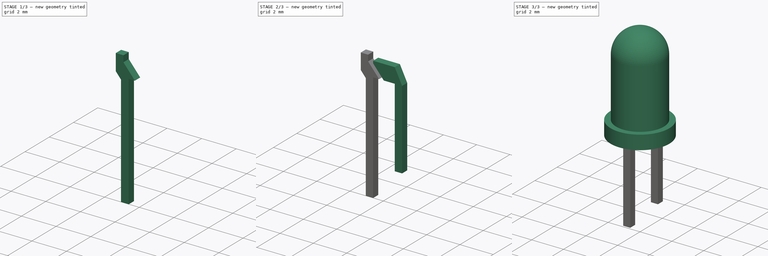
[diagram: build sequence overview — one tinted view per stage of 3, left to right]
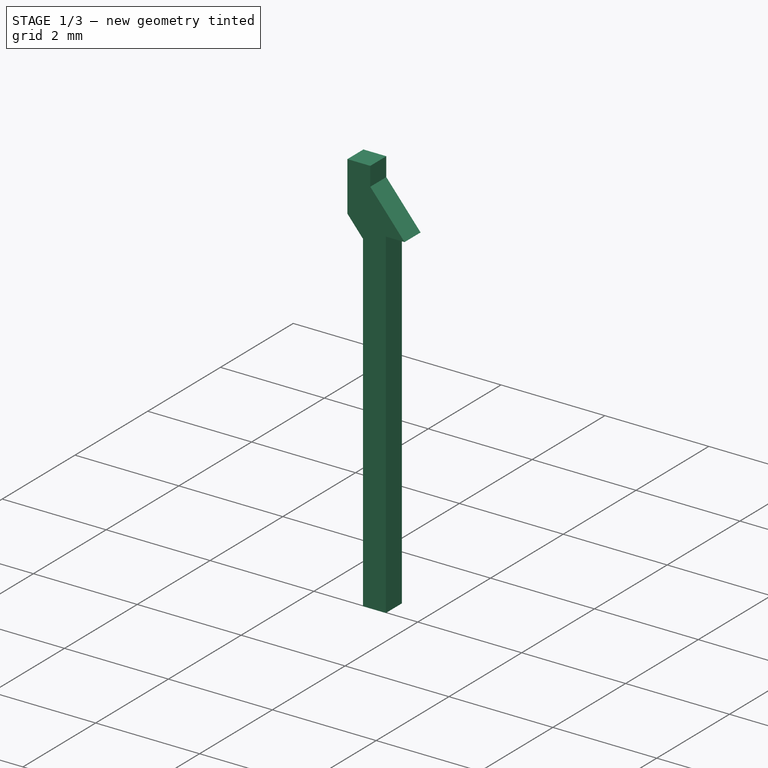
[diagram: stage 1 of 3 — iso view after this stage's code; geometry added in this stage tinted green]
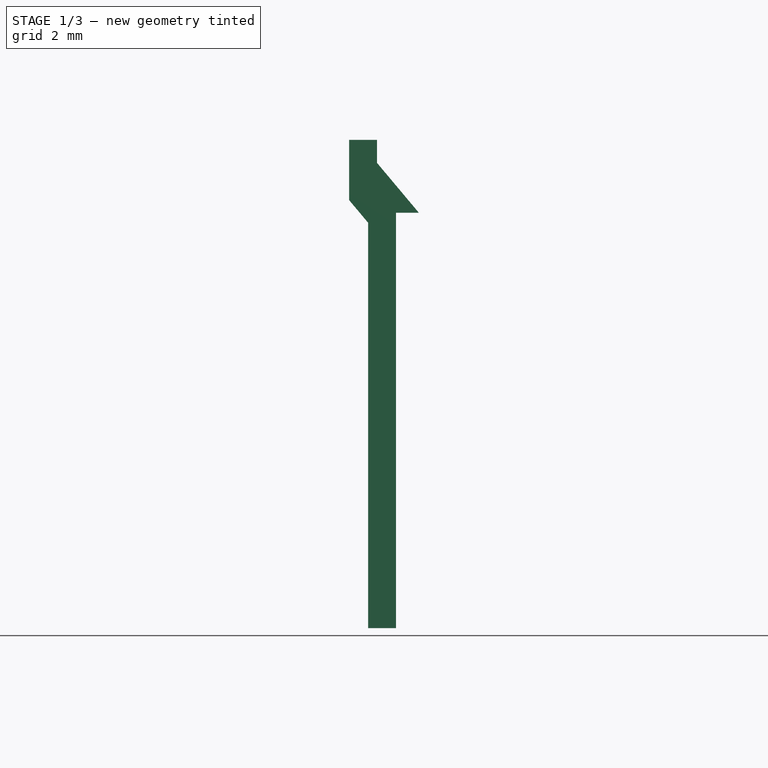
[diagram: stage 1 of 3 — front view after this stage's code; geometry added in this stage tinted green]
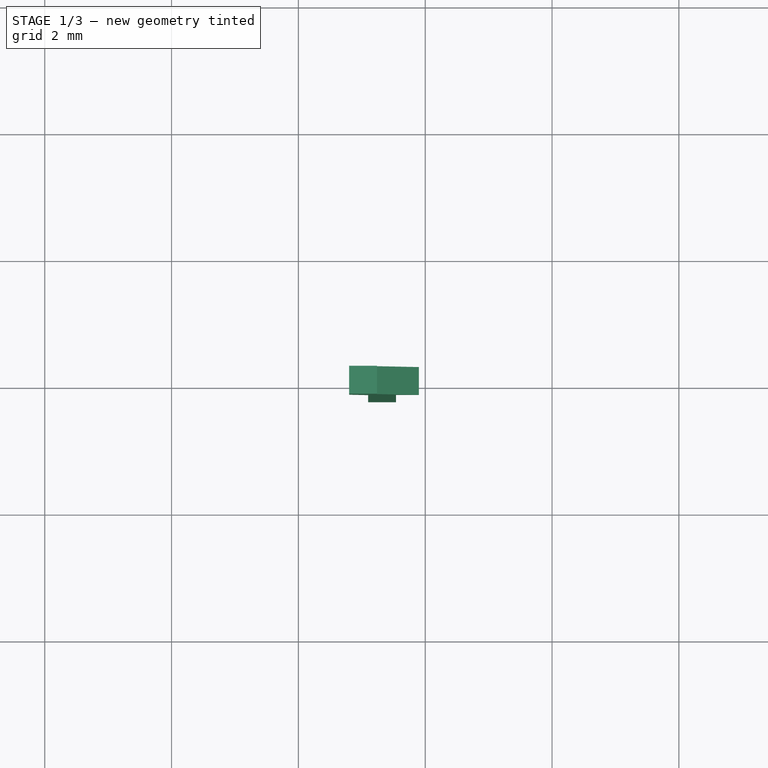
[diagram: stage 1 of 3 — top view after this stage's code; geometry added in this stage tinted green]
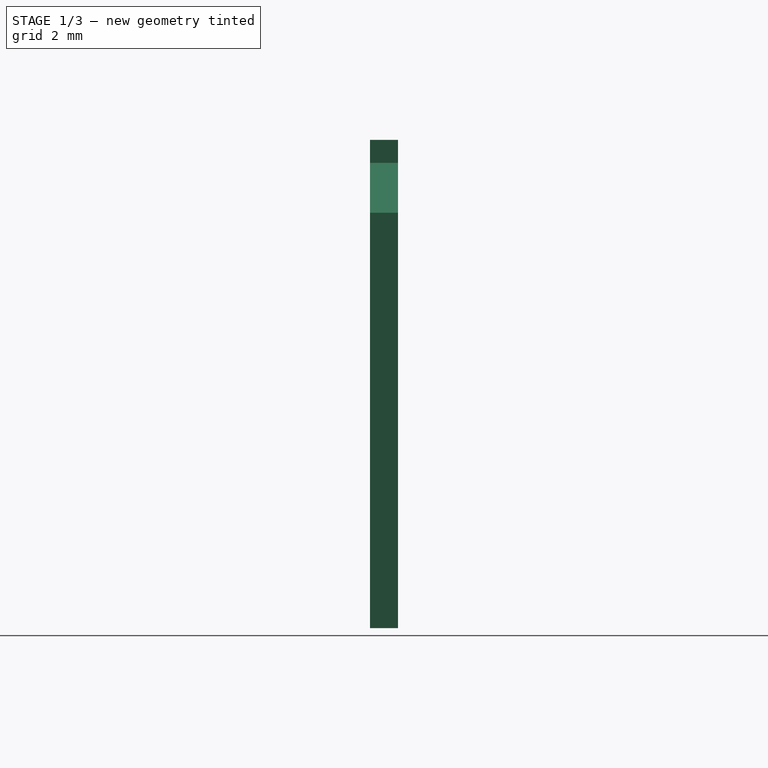
[diagram: stage 1 of 3 — right view after this stage's code; geometry added in this stage tinted green]
FCSTD DOCUMENT  (FreeCAD 0.16R6703 (Git))
Label: led-3mm-short-pins
License: All rights reserved
LicenseURL: http://en.wikipedia.org/wiki/All_rights_reserved
objects: Sketcher::SketchObject×3, Part::FeaturePython×3, PartDesign::Pad×2, PartDesign::Revolution×1, App::DocumentObjectGroup×1
note: 12 computed .brp shape members not serialized (recipe doc carries the construction recipe); baked Part::Feature solids carry a one-line shape summary decoded from their .brp

FEATURE [Sketcher::SketchObject] Sketch002  label="led-pos-pin-sketch"
  Placement = pos=(0,0,0) rot=(1,0,0;1.5708rad)
  expr: Constraints[26] = 3.5 + 1.8
  sketch-geometry (9):
    g0: LineSegment StartX=-1.2 StartY=1.45 StartZ=0 EndX=-1.2 EndY=2.4 EndZ=0
    g1: LineSegment StartX=-1.2 StartY=2.4 StartZ=0 EndX=-0.76 EndY=2.4 EndZ=0
    g2: LineSegment StartX=-0.76 StartY=2.4 StartZ=0 EndX=-0.76 EndY=2.03656 EndZ=0
    g3: LineSegment StartX=-0.76 StartY=2.03656 StartZ=0 EndX=-0.1 EndY=1.25 EndZ=0
    g4: LineSegment StartX=-0.1 StartY=1.25 StartZ=0 EndX=-0.46 EndY=1.25 EndZ=0
    g5: LineSegment StartX=-0.46 StartY=1.25 StartZ=0 EndX=-0.46 EndY=-5.3 EndZ=0
    g6: LineSegment StartX=-0.46 StartY=-5.3 StartZ=0 EndX=-0.9 EndY=-5.3 EndZ=0
    g7: LineSegment StartX=-0.9 StartY=-5.3 StartZ=0 EndX=-0.9 EndY=1.09247 EndZ=0
    g8: LineSegment StartX=-0.9 StartY=1.09247 StartZ=0 EndX=-1.2 EndY=1.45 EndZ=0
  constraints (27):
    c: Vertical(g0)
    c: Coincident(g0,g1)
    c: Horizontal(g1)
    c: Coincident(g1,g2)
    c: Coincident(g2,g3)
    c: Coincident(g3,g4)
    c: Horizontal(g4)
    c: Coincident(g4,g5)
    c: Vertical(g5)
    c: Coincident(g5,g6)
    c: Horizontal(g6)
    c: Coincident(g6,g7)
    c: Vertical(g7)
    c: Coincident(g7,g8)
    c: Coincident(g8,g0)
    c: DistanceY(g-1,g3) = 1.25
    c: Vertical(g2)
    c: Angle(g-1,g3) = 2.26893
    c: Parallel(g8,g3)
    c: Equal(g1,g6)
    c: DistanceX(g6,g6) = 0.44
    c: DistanceY(g0,g0) = 0.95
    c: DistanceX(g1,g-1) = 0.76
    c: DistanceX(g4,g4) = 0.36
    c: DistanceX(g0,g3) = 1.1
    c: DistanceY(g-1,g0) = 2.4
    c: DistanceY(g5,g-1) = 5.3
FEATURE [PartDesign::Pad] Pad001  label="led-pos-pin-src"
  Length = 0.44
  Length2 = 100
  Midplane = true
  Placement = pos=(0,0,0) rot=(1,0,0;1.5708rad)
  Sketch = -> Sketch002
  Type = 0
FEATURE [Part::FeaturePython] Clone002  label="led-pos-pin"  # Draft clone (typed FeaturePython)
  Objects = -> [Pad001]
  Placement = pos=(0,0,0) rot=(1,0,0;1.5708rad)
  Scale = (1,1,1)
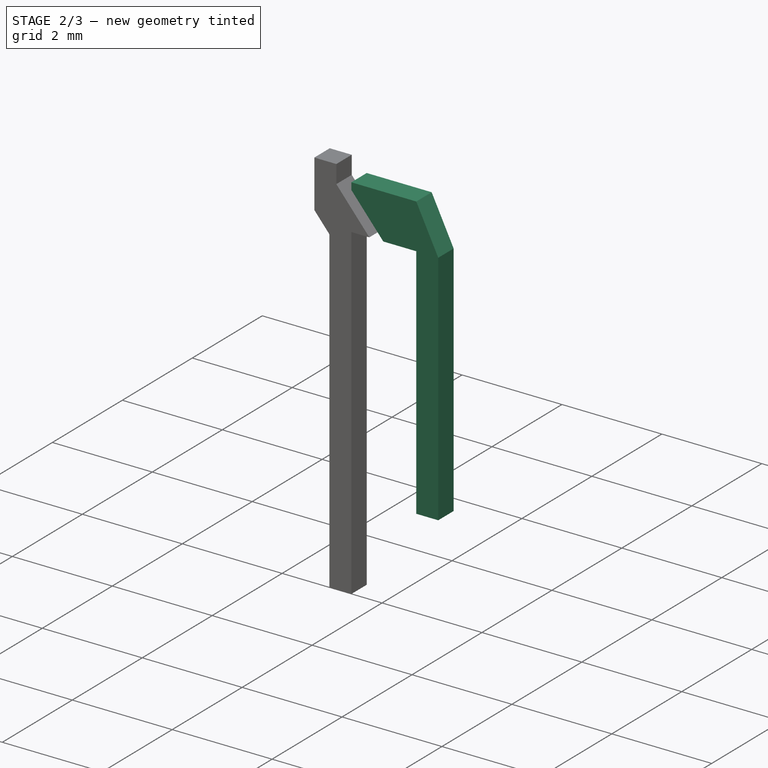
[diagram: stage 2 of 3 — iso view after this stage's code; geometry added in this stage tinted green]
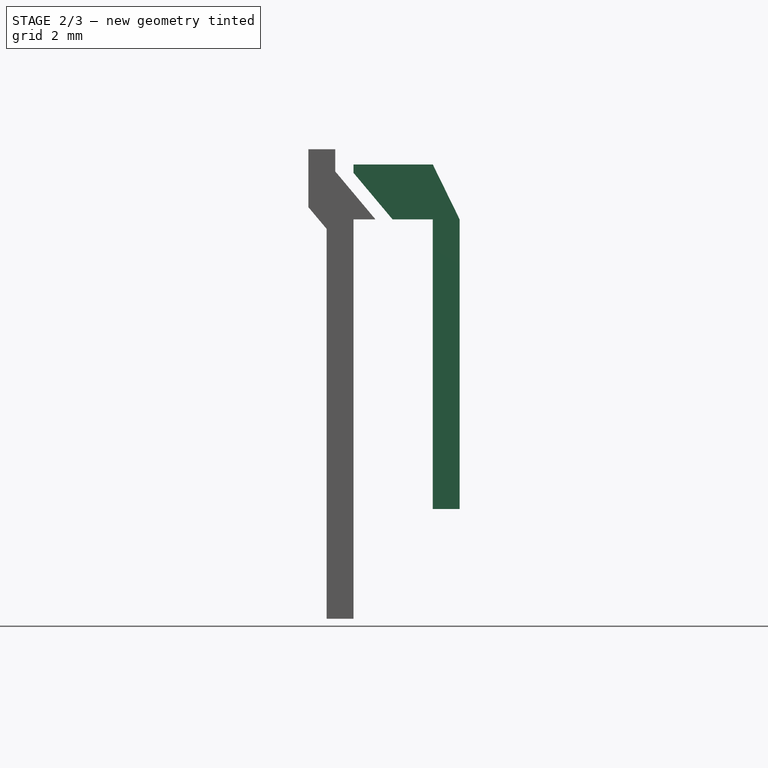
[diagram: stage 2 of 3 — front view after this stage's code; geometry added in this stage tinted green]
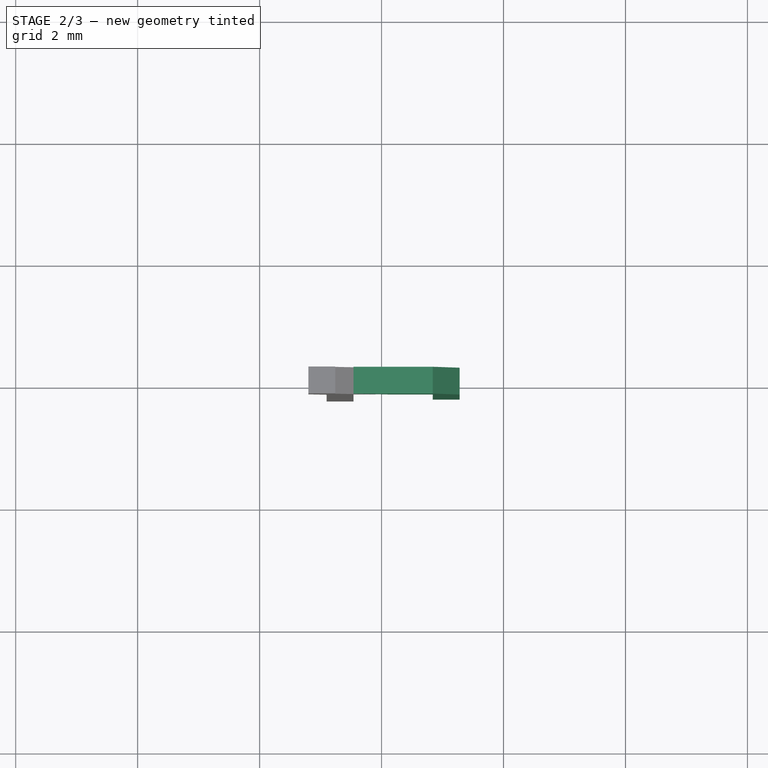
[diagram: stage 2 of 3 — top view after this stage's code; geometry added in this stage tinted green]
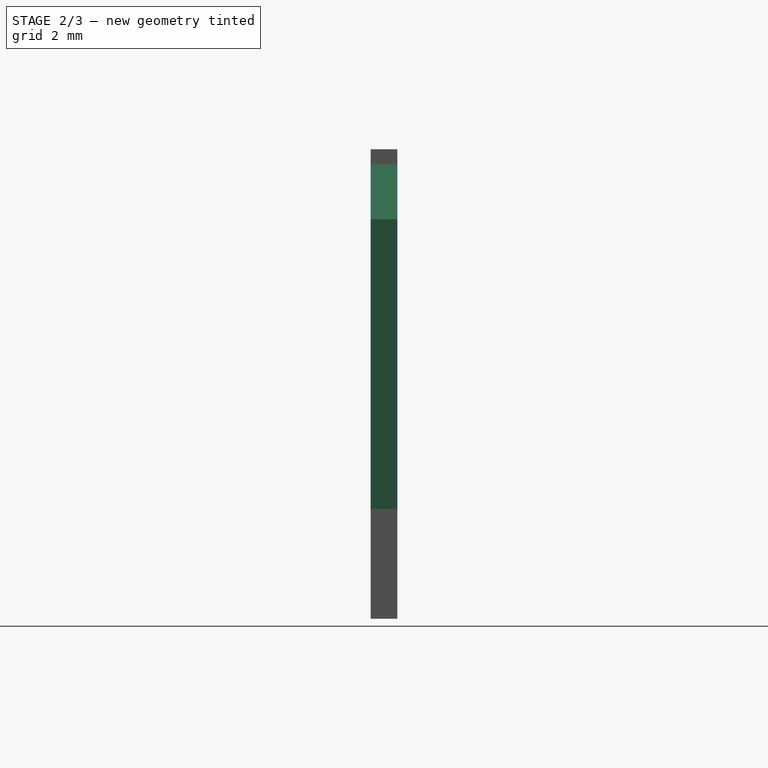
[diagram: stage 2 of 3 — right view after this stage's code; geometry added in this stage tinted green]
FEATURE [Sketcher::SketchObject] Sketch001  label="led_neg-pin-long-sketch"
  Placement = pos=(0,0,0) rot=(1,0,0;1.5708rad)
  sketch-geometry (8):
    g0: LineSegment StartX=-0.46 StartY=2.15 StartZ=0 EndX=-0.46 EndY=2.01272 EndZ=0
    g1: LineSegment StartX=-0.46 StartY=2.01272 StartZ=0 EndX=0.18 EndY=1.25 EndZ=0
    g2: LineSegment StartX=0.18 StartY=1.25 StartZ=0 EndX=0.84 EndY=1.25 EndZ=0
    g3: LineSegment StartX=0.84 StartY=1.25 StartZ=0 EndX=0.84 EndY=-3.5 EndZ=0
    g4: LineSegment StartX=0.84 StartY=-3.5 StartZ=0 EndX=1.28 EndY=-3.5 EndZ=0
    g5: LineSegment StartX=1.28 StartY=-3.5 StartZ=0 EndX=1.28 EndY=1.25 EndZ=0
    g6: LineSegment StartX=1.28 StartY=1.25 StartZ=0 EndX=0.84 EndY=2.15 EndZ=0
    g7: LineSegment StartX=0.84 StartY=2.15 StartZ=0 EndX=-0.46 EndY=2.15 EndZ=0
  constraints (24):
    c: Vertical(g0)
    c: Coincident(g0,g1)
    c: Coincident(g1,g2)
    c: Horizontal(g2)
    c: Coincident(g2,g3)
    c: Vertical(g3)
    c: Coincident(g3,g4)
    c: Horizontal(g4)
    c: Coincident(g4,g5)
    c: Vertical(g5)
    c: Coincident(g5,g6)
    c: Coincident(g6,g7)
    c: Coincident(g7,g0)
    c: Horizontal(g7)
    c: DistanceX(g4,g4) = 0.44
    c: DistanceX(g2,g2) = 0.66
    c: DistanceX(g-1,g3) = 0.84
    c: DistanceY(g-1,g2) = 1.25
    c: Angle(g-1,g1) = 2.26893
    c: DistanceY(g-1,g0) = 2.15
    c: PointOnObject(g5,g2)
    c: PointOnObject(g6,g3)
    c: DistanceX(g7,g7) = 1.3
    c: DistanceY(g3,g-1) = 3.5
FEATURE [PartDesign::Pad] Pad  label="led-neg-pin-src"
  Length = 0.44
  Length2 = 100
  Midplane = true
  Placement = pos=(0,0,0) rot=(1,0,0;1.5708rad)
  Sketch = -> Sketch001
  Type = 0
FEATURE [App::DocumentObjectGroup] Group  label="led-src"
  Group = -> [Revolution,Pad,Pad001]
FEATURE [Part::FeaturePython] Clone001  label="led-neg-pin"  # Draft clone (typed FeaturePython)
  Objects = -> [Pad]
  Placement = pos=(0,0,0) rot=(1,0,0;1.5708rad)
  Scale = (1,1,1)
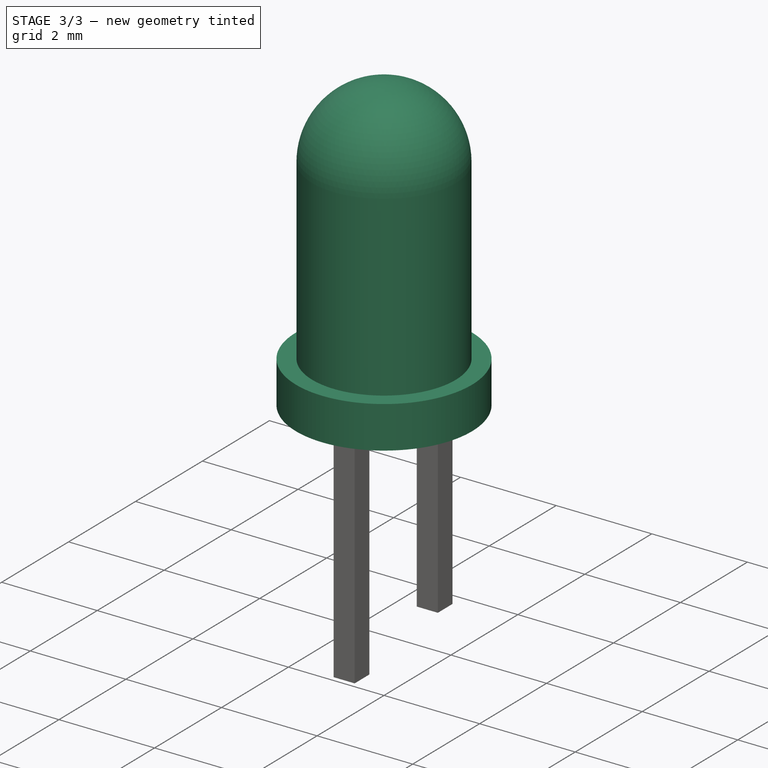
[diagram: stage 3 of 3 — iso view after this stage's code; geometry added in this stage tinted green]
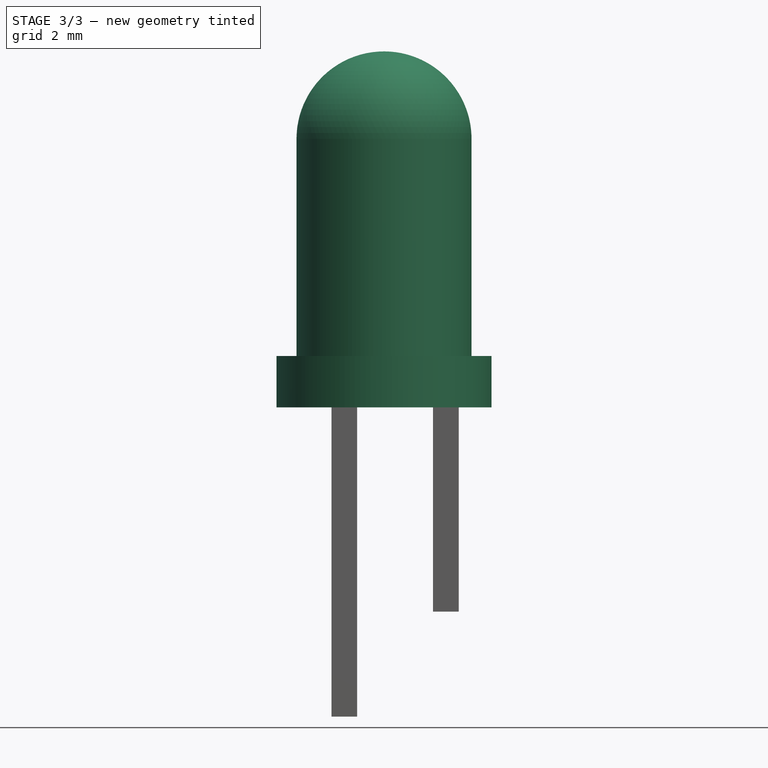
[diagram: stage 3 of 3 — front view after this stage's code; geometry added in this stage tinted green]
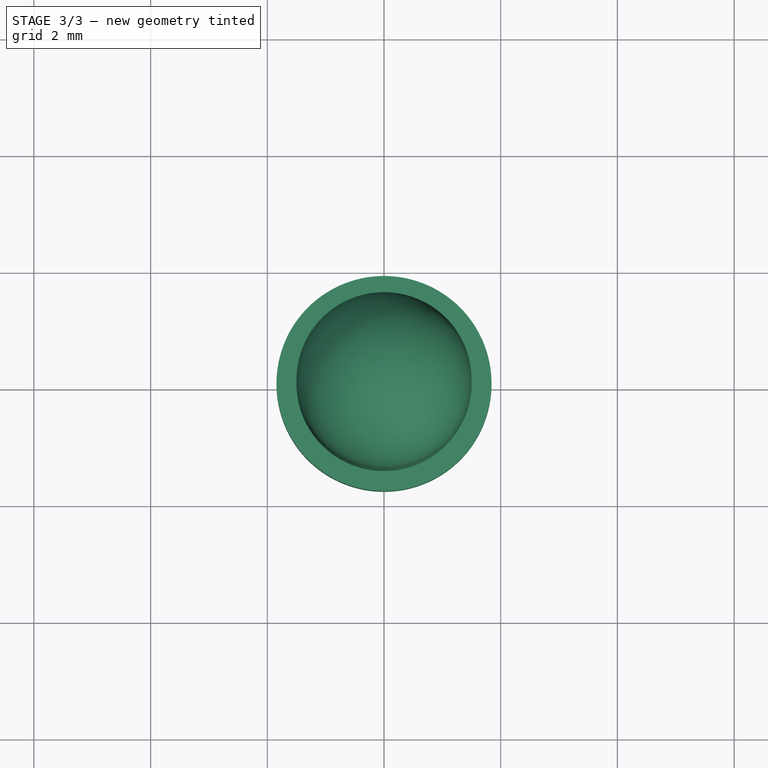
[diagram: stage 3 of 3 — top view after this stage's code; geometry added in this stage tinted green]
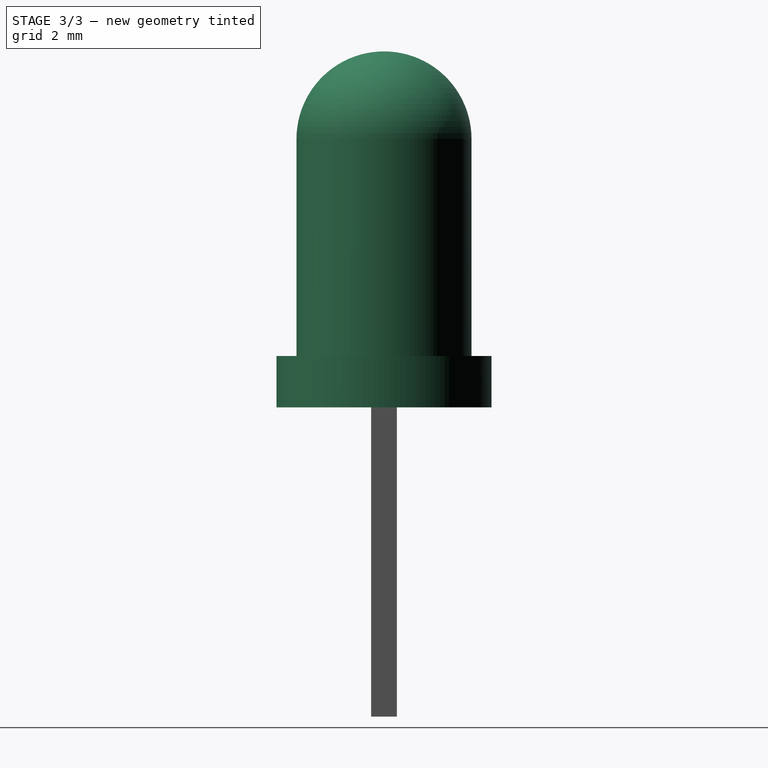
[diagram: stage 3 of 3 — right view after this stage's code; geometry added in this stage tinted green]
FEATURE [Sketcher::SketchObject] Sketch  label="led_head_sketch"
  Placement = pos=(0,0,0) rot=(1,0,0;1.5708rad)
  sketch-geometry (6):
    g0: LineSegment StartX=0 StartY=6.1 StartZ=0 EndX=0 EndY=0 EndZ=0
    g1: LineSegment StartX=0 StartY=0 StartZ=0 EndX=1.843 EndY=0 EndZ=0
    g2: LineSegment StartX=1.843 StartY=0 StartZ=0 EndX=1.843 EndY=0.88 EndZ=0
    g3: LineSegment StartX=1.843 StartY=0.88 StartZ=0 EndX=1.5 EndY=0.88 EndZ=0
    g4: LineSegment StartX=1.5 StartY=0.88 StartZ=0 EndX=1.5 EndY=4.59999 EndZ=0
    g5: ArcOfCircle CenterX=0 CenterY=4.6 CenterZ=0 NormalX=0 NormalY=0 NormalZ=1 Radius=1.5 StartAngle=6.28318 EndAngle=7.85398
  constraints (18):
    c: Vertical(g0)
    c: Coincident(g0,g1)
    c: Horizontal(g1)
    c: Coincident(g1,g2)
    c: Vertical(g2)
    c: Coincident(g2,g3)
    c: Horizontal(g3)
    c: Coincident(g3,g4)
    c: Vertical(g4)
    c: Coincident(g0,g-1)
    c: PointOnObject(g5,g0)
    c: Coincident(g5,g4)
    c: Coincident(g5,g0)
    c: DistanceX(g1,g1) = 1.843
    c: DistanceY(g2,g2) = 0.88
    c: Radius(g5) = 1.5
    c: DistanceY(g0,g0) = 6.1
    c: Tangent(g5,g4)
FEATURE [PartDesign::Revolution] Revolution  label="led_head-src"
  Angle = 360
  Axis = (0,0,1)
  Base = (0,0,0)
  Placement = pos=(0,0,0) rot=(1,0,0;1.5708rad)
  ReferenceAxis = -> Sketch [V_Axis]
  Reversed = true
  Sketch = -> Sketch
FEATURE [Part::FeaturePython] Clone  label="led_head"  # Draft clone (typed FeaturePython)
  Objects = -> [Revolution]
  Placement = pos=(0,0,0) rot=(1,0,0;1.5708rad)
  Scale = (1,1,1)
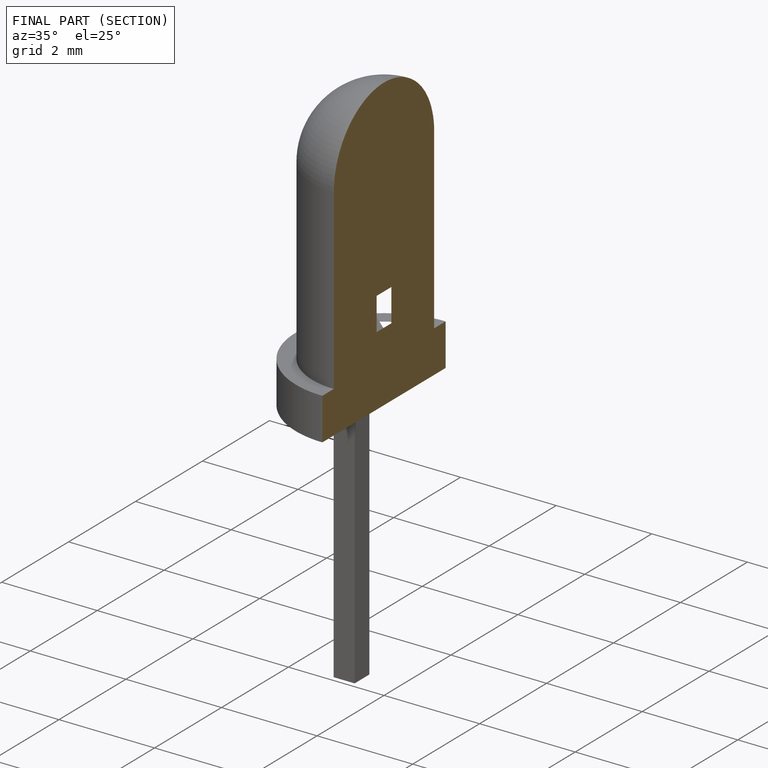
[diagram: finished part — half-section view (interior)]
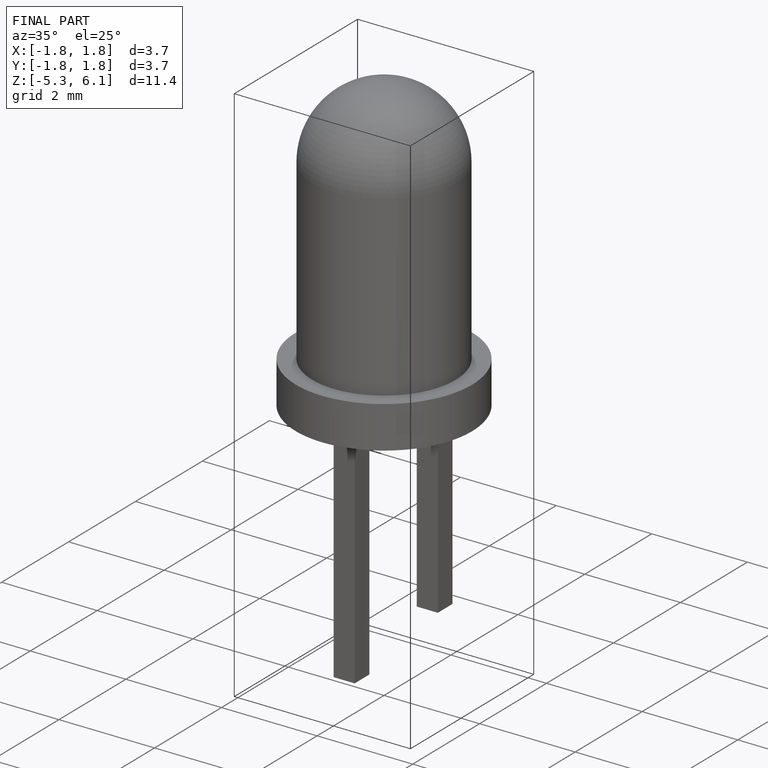
[diagram: finished part — iso view with bounding-box wireframe]
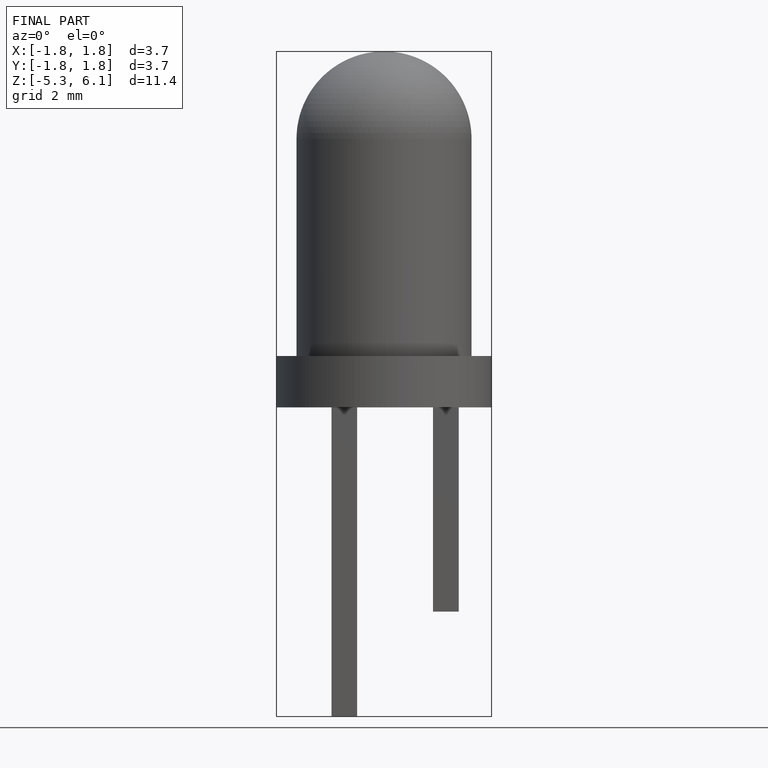
[diagram: finished part — front view with bounding-box wireframe]
